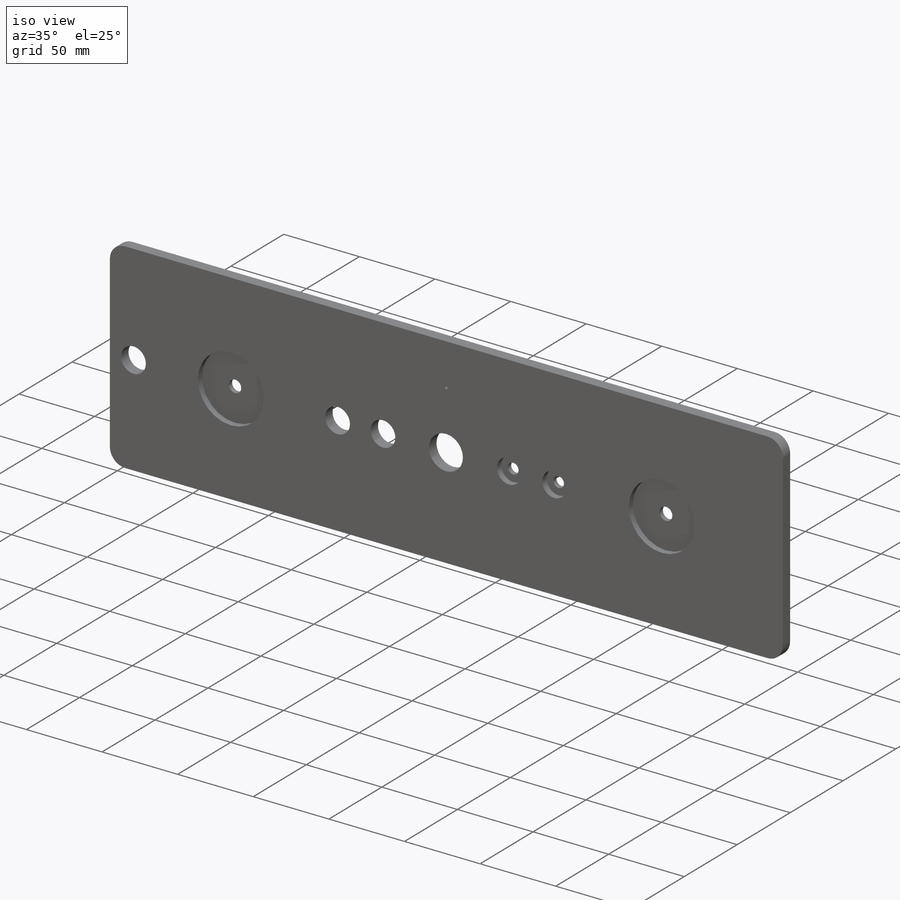
[diagram: iso view]
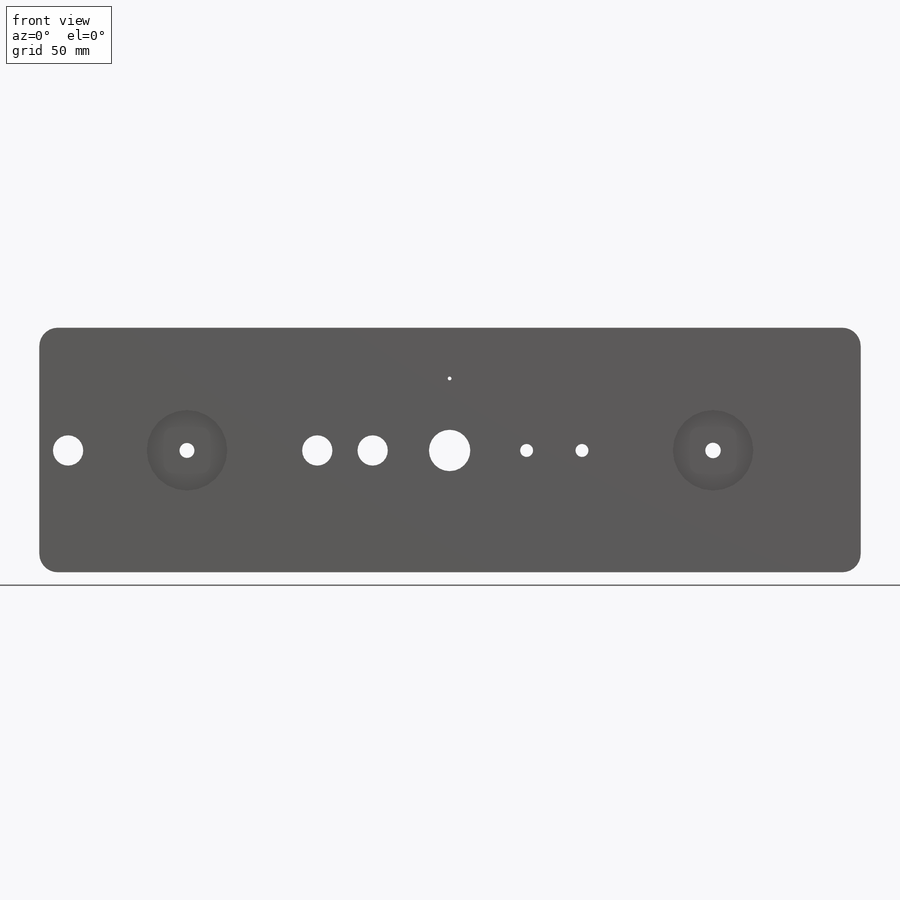
[diagram: front view]
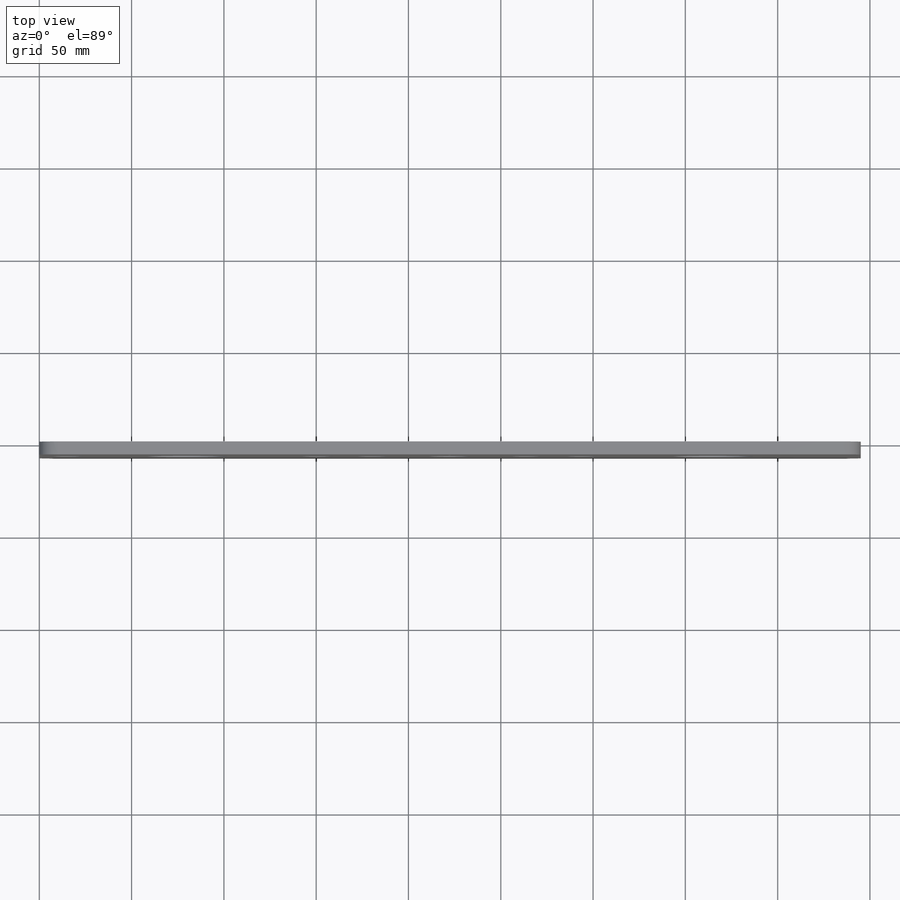
[diagram: top view]
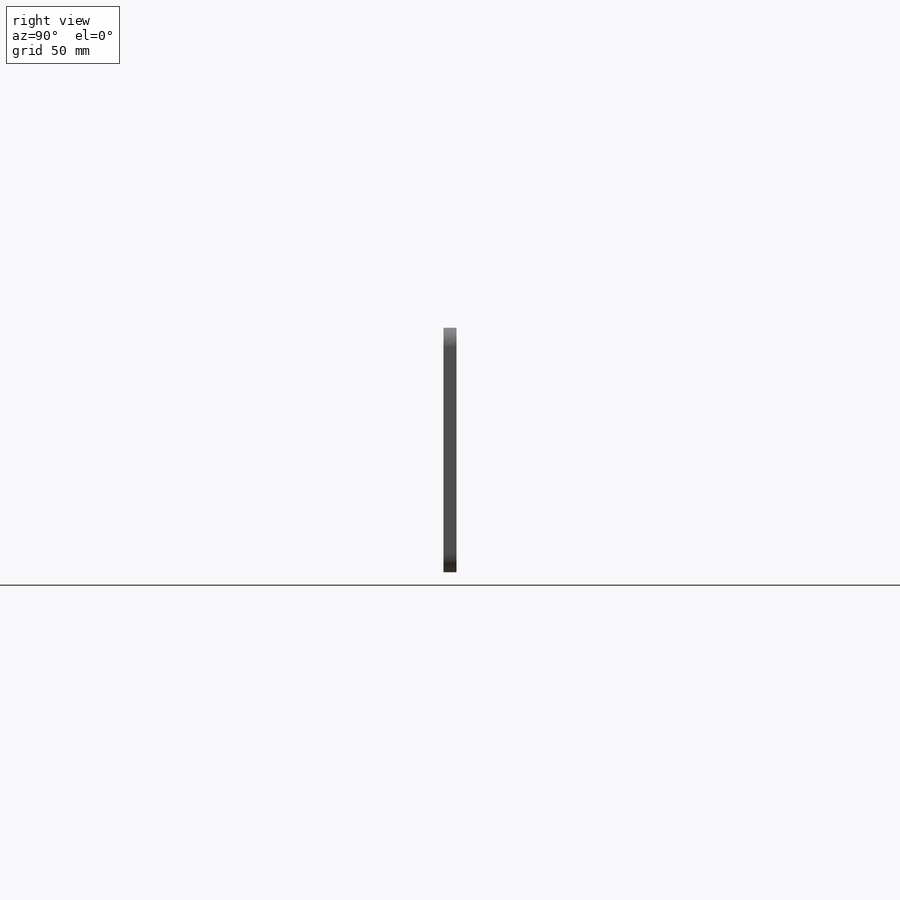
[diagram: right view]
SOLIDWORKS PART (.sldprt)
format: sldprt  version: not decoded by parser v0  size: 224,256 bytes
history: native  units: mm
features: sketch x4, plane x3, cut_extrude x3, material x1, extrude x1 (+13 scaffold rows collapsed)
feature tree (25):
  scaffold x13  (default folders/planes/origin — collapsed)
  material  "Материал <не указан>"
  plane  "Спереди"
  plane  "Сверху"
  plane  "Справа"
  sketch  "Эскиз1"  dims[c1.D1=10.0mm c1.D2=10.0mm c1.D3=10.0mm c1.D4=10.0mm c2.D1=10.0mm c2.D2=10.0mm c2.D3=10.0mm c2.D4=10.0mm c2.D5=~9.082973mm c3.D3=10.0mm c3.D5=~89.999954deg]
  extrude  "Бобышка-Вытянуть1"  Depth=7mm
  sketch  "Эскиз6"  dims[D1=22.05mm]
  cut_extrude  "Вырез-Вытянуть3"  Depth=4mm
  sketch  "Эскиз7"  dims[D1=2.5mm]
  cut_extrude  "Вырез-Вытянуть4"  Depth=6mm
  sketch  "Эскиз13"  dims[D1=~2.735505mm]
  cut_extrude  "РезьбаМ4"  Depth=5mm
decode coverage: 8 of 8 modeling features carry decoded parameters
note: ~ marks probable driven/reference dimensions
note: suppression state not decoded; provenance and decode notes live in map.json
